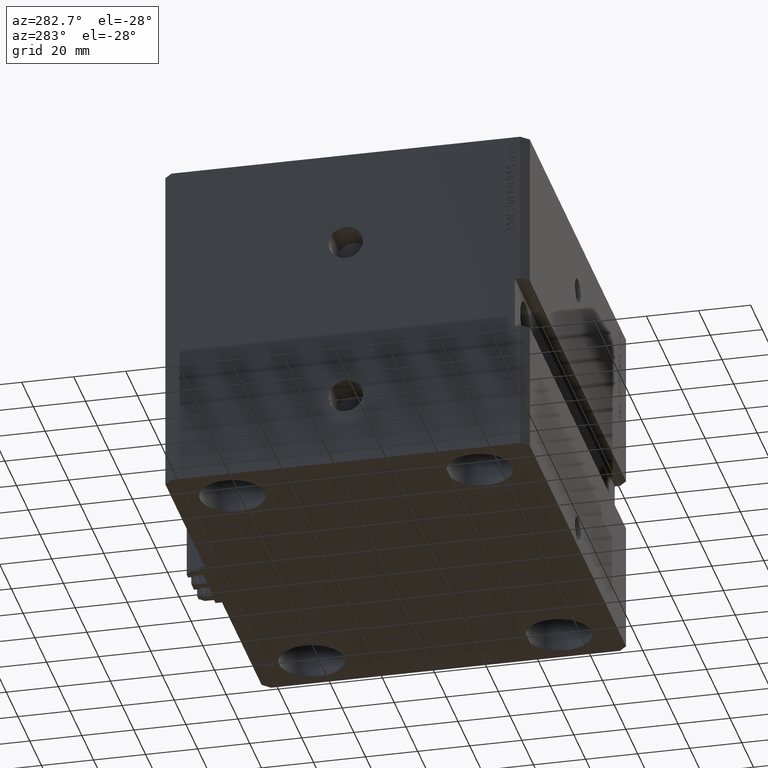
[diagram: clean part render]
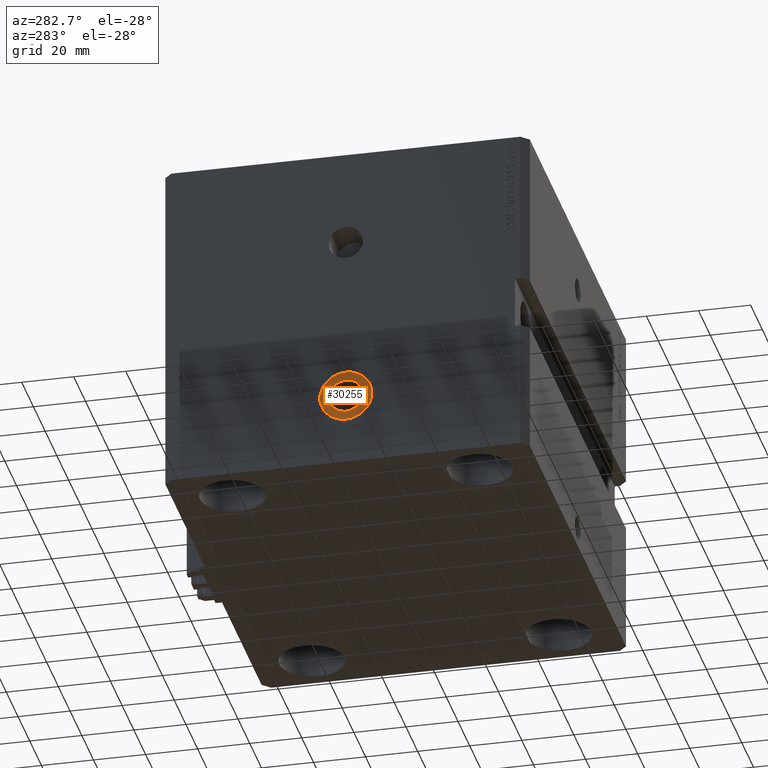
[diagram: same view with one face highlighted and labeled with its STEP entity id]
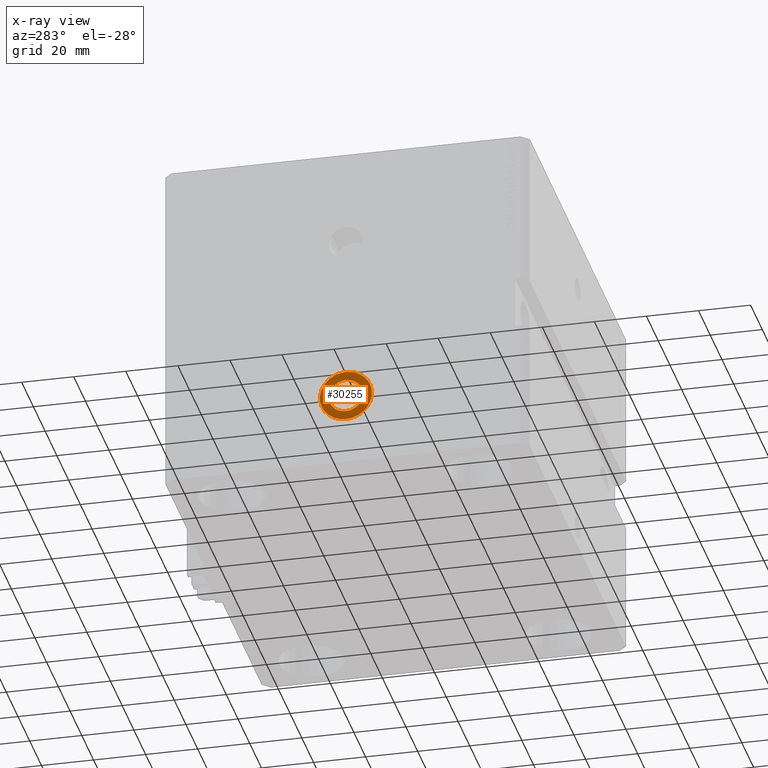
[diagram: x-ray of the same camera — body ghosted, the highlighted face saturated]
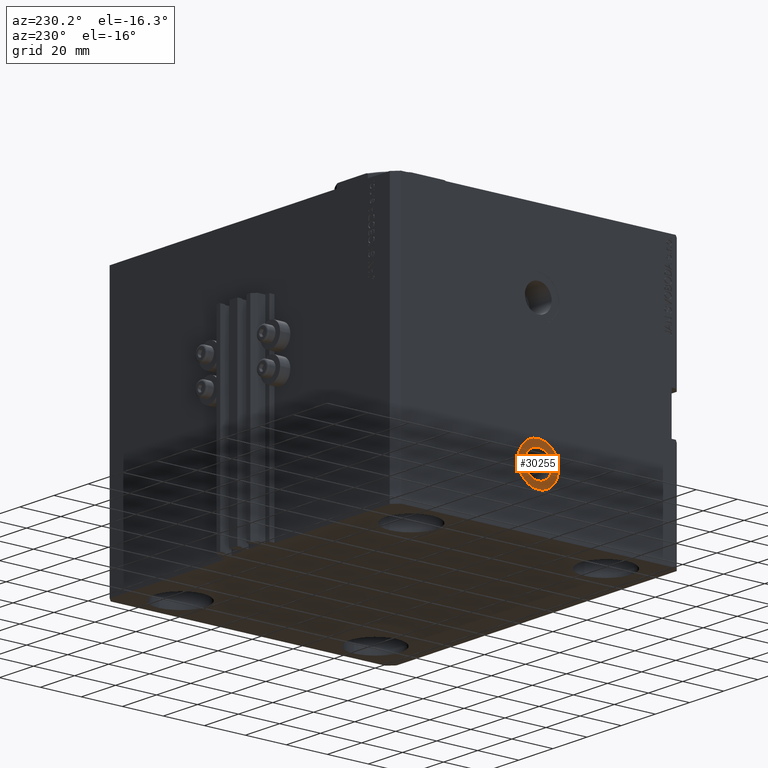
[diagram: same view with one face highlighted and labeled with its STEP entity id]
A machine part, auxiliary view. The second image highlights one B-rep face of the part: STEP entity #30255.
The next image is the same camera in x-ray: the body ghosted, the highlighted face saturated — about 0% of this face is hidden behind the body in this view.
A second angle (auxiliary view) of the same face is appended — the face is thin or edge-on in the first view.
In plain terms, the highlighted planar face has unit normal (-1, 0, 0).
Its self-contained STEP definition (entity closure, byte-faithful):
#2281 = AXIS2_PLACEMENT_3D ( 'NONE', #2632, #17579, #21006 ) ;
#2632 = CARTESIAN_POINT ( 'NONE',  ( -84.90000000000000568, -3.688322995599801909E-15, -102.0000000000000000 ) ) ;
#3746 = DIRECTION ( 'NONE',  ( 0.000000000000000000, 0.000000000000000000, 1.000000000000000000 ) ) ;
#5543 = FACE_BOUND ( 'NONE', #25644, .T. ) ;
#6135 = AXIS2_PLACEMENT_3D ( 'NONE', #18420, #14498, #47328 ) ;
#8727 = CARTESIAN_POINT ( 'NONE',  ( -84.90000000000000568, -3.688322995599801909E-15, -102.0000000000000000 ) ) ;
#9270 = EDGE_LOOP ( 'NONE', ( #36105, #18994 ) ) ;
#9774 = VERTEX_POINT ( 'NONE', #22979 ) ;
#13095 = EDGE_CURVE ( 'NONE', #20172, #9774, #48369, .T. ) ;
#14498 = DIRECTION ( 'NONE',  ( -1.000000000000000000, 0.000000000000000000, 0.000000000000000000 ) ) ;
#15830 = FACE_OUTER_BOUND ( 'NONE', #9270, .T. ) ;
#16680 = EDGE_CURVE ( 'NONE', #9774, #20172, #32038, .T. ) ;
#17579 = DIRECTION ( 'NONE',  ( -1.000000000000000000, 0.000000000000000000, 0.000000000000000000 ) ) ;
#17967 = VERTEX_POINT ( 'NONE', #42368 ) ;
#18420 = CARTESIAN_POINT ( 'NONE',  ( -84.90000000000000568, -3.688322995599801909E-15, -102.0000000000000000 ) ) ;
#18752 = AXIS2_PLACEMENT_3D ( 'NONE', #46637, #27285, #42232 ) ;
#18994 = ORIENTED_EDGE ( 'NONE', *, *, #13095, .T. ) ;
#19080 = ORIENTED_EDGE ( 'NONE', *, *, #34124, .F. ) ;
#19749 = PLANE ( 'NONE',  #26421 ) ;
#20172 = VERTEX_POINT ( 'NONE', #39522 ) ;
#21006 = DIRECTION ( 'NONE',  ( 0.000000000000000000, 0.000000000000000000, 1.000000000000000000 ) ) ;
#22979 = CARTESIAN_POINT ( 'NONE',  ( -84.90000000000000568, -3.688322995599801909E-15, -92.00000000000000000 ) ) ;
#25644 = EDGE_LOOP ( 'NONE', ( #41513, #19080 ) ) ;
#26421 = AXIS2_PLACEMENT_3D ( 'NONE', #8727, #30535, #45712 ) ;
#27285 = DIRECTION ( 'NONE',  ( -1.000000000000000000, 0.000000000000000000, 0.000000000000000000 ) ) ;
#30255 = ADVANCED_FACE ( 'NONE', ( #5543, #15830 ), #19749, .T. ) ;
#30535 = DIRECTION ( 'NONE',  ( -1.000000000000000000, 0.000000000000000000, 0.000000000000000000 ) ) ;
#32038 = CIRCLE ( 'NONE', #18752, 9.999999999999994671 ) ;
#34124 = EDGE_CURVE ( 'NONE', #17967, #40032, #35156, .T. ) ;
#35156 = CIRCLE ( 'NONE', #2281, 6.580000000000002736 ) ;
#36105 = ORIENTED_EDGE ( 'NONE', *, *, #16680, .T. ) ;
#36725 = CARTESIAN_POINT ( 'NONE',  ( -84.90000000000000568, -3.688322995599801909E-15, -95.41999999999998749 ) ) ;
#36806 = DIRECTION ( 'NONE',  ( -1.000000000000000000, 0.000000000000000000, 0.000000000000000000 ) ) ;
#39253 = CIRCLE ( 'NONE', #43970, 6.580000000000002736 ) ;
#39522 = CARTESIAN_POINT ( 'NONE',  ( -84.90000000000000568, -2.463676196452448850E-15, -111.9999999999999858 ) ) ;
#40032 = VERTEX_POINT ( 'NONE', #36725 ) ;
#41513 = ORIENTED_EDGE ( 'NONE', *, *, #44057, .F. ) ;
#42232 = DIRECTION ( 'NONE',  ( 0.000000000000000000, 0.000000000000000000, 1.000000000000000000 ) ) ;
#42368 = CARTESIAN_POINT ( 'NONE',  ( -84.90000000000000568, -2.882505401760843262E-15, -108.5799999999999983 ) ) ;
#43970 = AXIS2_PLACEMENT_3D ( 'NONE', #44164, #36806, #3746 ) ;
#44057 = EDGE_CURVE ( 'NONE', #40032, #17967, #39253, .T. ) ;
#44164 = CARTESIAN_POINT ( 'NONE',  ( -84.90000000000000568, -3.688322995599801909E-15, -102.0000000000000000 ) ) ;
#45712 = DIRECTION ( 'NONE',  ( 0.000000000000000000, 0.000000000000000000, 1.000000000000000000 ) ) ;
#46637 = CARTESIAN_POINT ( 'NONE',  ( -84.90000000000000568, -3.688322995599801909E-15, -102.0000000000000000 ) ) ;
#47328 = DIRECTION ( 'NONE',  ( 0.000000000000000000, 0.000000000000000000, 1.000000000000000000 ) ) ;
#48369 = CIRCLE ( 'NONE', #6135, 9.999999999999994671 ) ;